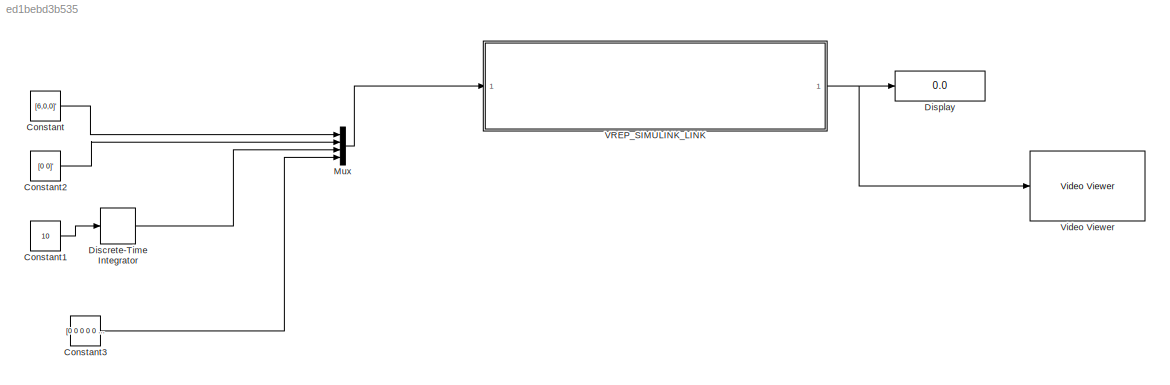
MODEL slx_ed1bebd3b535
KIND model
BLOCK [Constant] Constant
  SampleTime = 0.01
  Value = [6,0,0]'
BLOCK [Constant] Constant1
  Value = 10
BLOCK [Constant] Constant2
  SampleTime = 0.01
  Value = [0 0]'
BLOCK [Constant] Constant3
  SampleTime = 0.01
  Value = [0 0 0 0 0 0]'
BLOCK [DiscreteIntegrator] Discrete-Time Integrator
  ICPrevOutput = DiscIntNeverNeededParam
  ICPrevScaledInput = DiscIntNeverNeededParam
  Ports = [1, 1]
  SampleTime = 0.01
BLOCK [Display] Display
  Decimation = 1
  Ports = [1]
BLOCK [Mux] Mux
  DisplayOption = bar
  Ports = [4, 1]
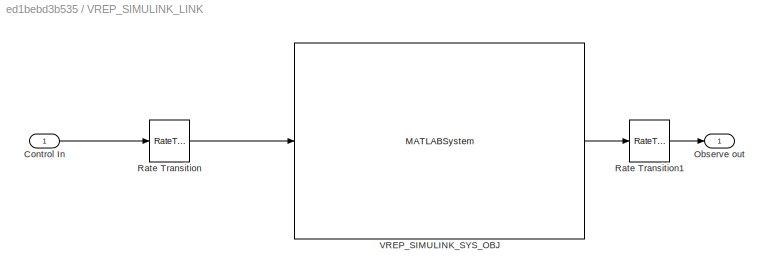
BLOCK [SubSystem] VREP_SIMULINK_LINK
  Ports = [1, 1]
  RequestExecContextInheritance = off
BLOCK [Inport] VREP_SIMULINK_LINK/Control In
  IconDisplay = Port number
BLOCK [Outport] VREP_SIMULINK_LINK/Observe out
  IconDisplay = Port number
BLOCK [RateTransition] VREP_SIMULINK_LINK/Rate Transition
  OutPortSampleTime = OutPortSampleTime
BLOCK [RateTransition] VREP_SIMULINK_LINK/Rate Transition1
  OutPortSampleTime = OutPortSampleTime
BLOCK [MATLABSystem] VREP_SIMULINK_LINK/VREP_SIMULINK_SYS_OBJ
  MaskDisplay = disp('V-REP');\nport_label('input',1,'ControlPose(2)');\nport_label('output',1,'ObservePose(1)');
  MaskType = SysObjVREP_1
  ObjectsInScene = ''
  Ports = [1, 1]
  SimulateUsing = Interpreted execution
  System = SysObjVREP_1
  m_ControlObjects = m_ControlObjects
  m_InitialControllablePose = m_InitialControllablePose
  m_ObserveObjects = m_ObserveObjects
  sceneFileName = <path>
BLOCK [Reference] Video Viewer  REF=visionsinks/Video Viewer
  AxisZoom = on
  DefaultConfigurationName = vipscopes.VideoViewerScopeCfg
  FigPos = [1 726 1366 627]
  OpenAtMdlStart = on
  Ports = [1]
  SourceBlock = visionsinks/Video Viewer
  SourceType = Video Viewer
  UserDataPersistent = on
  colormapValue = gray(256)
  imagePorts = One multidimensional signal
  inputType = Obsolete7b
  maxInputVal = 255
  minInputVal = 0
  specRange = off
  trueSizedOnce = off
  useColorMap = off
LINE Constant1:1 -> Discrete-Time Integrator:1
LINE Constant2:1 -> Mux:2
LINE Constant3:1 -> Mux:4
LINE Constant:1 -> Mux:1
LINE Discrete-Time Integrator:1 -> Mux:3
LINE Mux:1 -> VREP_SIMULINK_LINK:1
LINE VREP_SIMULINK_LINK/Control In:1 -> VREP_SIMULINK_LINK/Rate Transition:1
LINE VREP_SIMULINK_LINK/Rate Transition1:1 -> VREP_SIMULINK_LINK/Observe out:1
LINE VREP_SIMULINK_LINK/Rate Transition:1 -> VREP_SIMULINK_LINK/VREP_SIMULINK_SYS_OBJ:1
LINE VREP_SIMULINK_LINK/VREP_SIMULINK_SYS_OBJ:1 -> VREP_SIMULINK_LINK/Rate Transition1:1
NET VREP_SIMULINK_LINK:1 -> Display:1, Video Viewer:1
note: NET lines group one-source signal fan-out (src -> all destinations, sorted); 1:1 wires keep LINE
note: 1 file-system path scrubbed to <path> (not preserved elsewhere — flat text is the only slx artifact)
